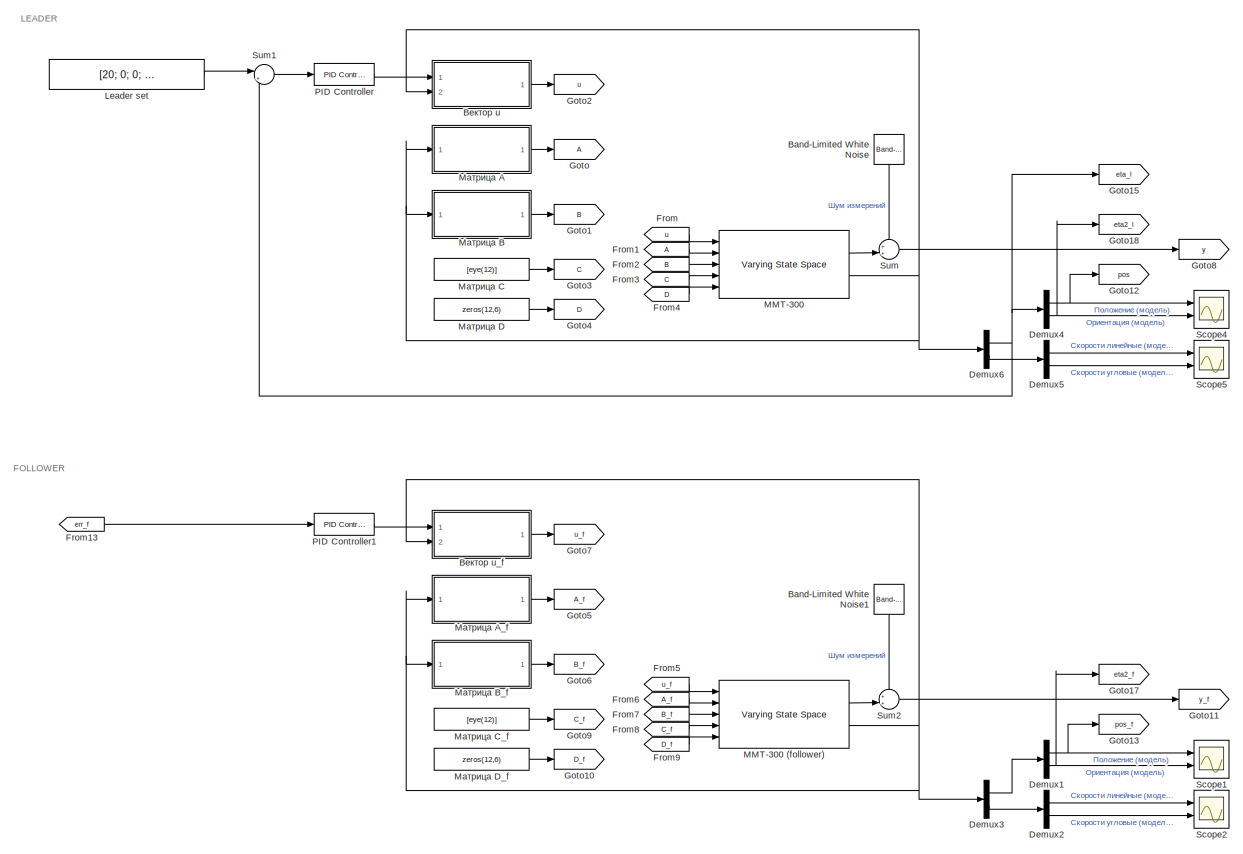
[diagram: root canvas - part 1/2, left side, full height]
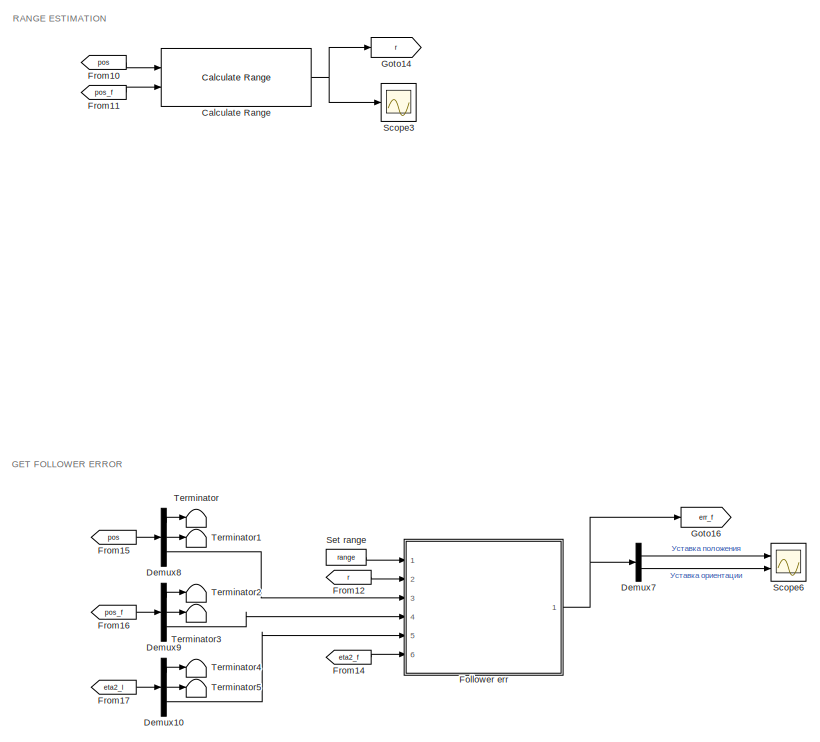
[diagram: root canvas - part 2/2, right side, full height]
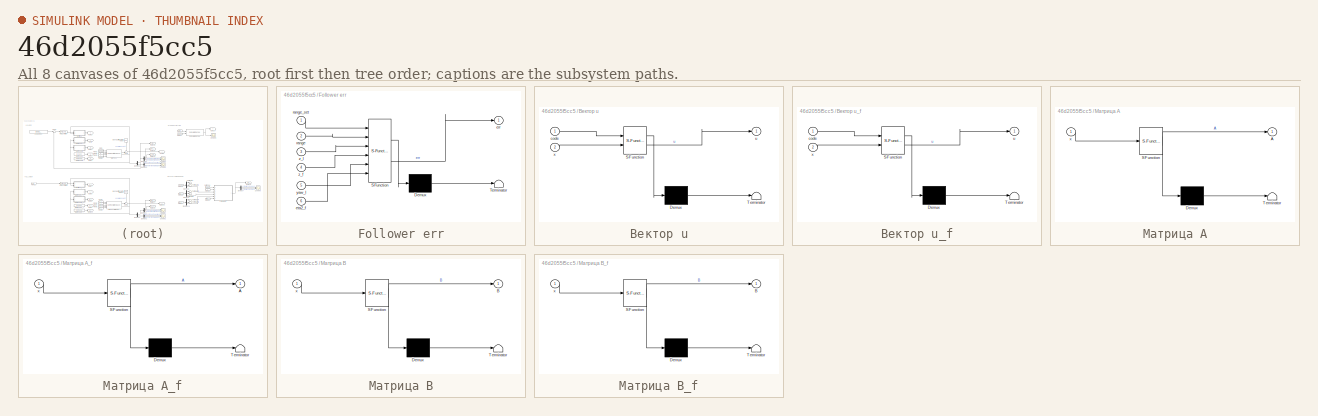
[diagram: thumbnail index - all 8 canvases of the model, root first then tree order]
MODEL slx_46d2055f5cc5
KIND model
CONFIG AbsTol = auto
CONFIG EnableMultiTasking = off
CONFIG FixedStep = auto
CONFIG InitFcn = initFcn
CONFIG MaxStep = auto
CONFIG MinStep = auto
CONFIG RelTol = 1e-3
CONFIG SampleTimeConstraint = Unconstrained
CONFIG SolverName = VariableStepAuto
CONFIG StartTime = 0.0
CONFIG StopFcn = stopFcn
CONFIG StopTime = 20
BLOCK [Reference] Band-Limited White Noise  REF=simulink/Sources/Band-Limited
White Noise
  NameLocation = left
  Ports = [0, 1]
  SourceBlock = simulink/Sources/Band-Limited\nWhite Noise
  SourceProductBaseCode = SL
  SourceType = Band-Limited White Noise.
BLOCK [Reference] Band-Limited White Noise1  REF=simulink/Sources/Band-Limited
White Noise
  NameLocation = left
  Ports = [0, 1]
  SourceBlock = simulink/Sources/Band-Limited\nWhite Noise
  SourceProductBaseCode = SL
  SourceType = Band-Limited White Noise.
BLOCK [Reference] Calculate Range  REF=aerolibguid/Calculate
Range
  Ports = [2, 1]
  SourceBlock = aerolibguid/Calculate\nRange
  SourceProductBaseCode = AE
  SourceType = Calculate Range
BLOCK [Demux] Demux1
  Outputs = 2
  Ports = [1, 2]
BLOCK [Demux] Demux10
  Outputs = 3
  Ports = [1, 3]
BLOCK [Demux] Demux2
  Outputs = 2
  Ports = [1, 2]
BLOCK [Demux] Demux3
  Outputs = 2
  Ports = [1, 2]
BLOCK [Demux] Demux4
  Outputs = 2
  Ports = [1, 2]
BLOCK [Demux] Demux5
  Outputs = 2
  Ports = [1, 2]
BLOCK [Demux] Demux6
  Outputs = 2
  Ports = [1, 2]
BLOCK [Demux] Demux7
  Outputs = 2
  Ports = [1, 2]
BLOCK [Demux] Demux8
  Outputs = 3
  Ports = [1, 3]
BLOCK [Demux] Demux9
  Outputs = 3
  Ports = [1, 3]
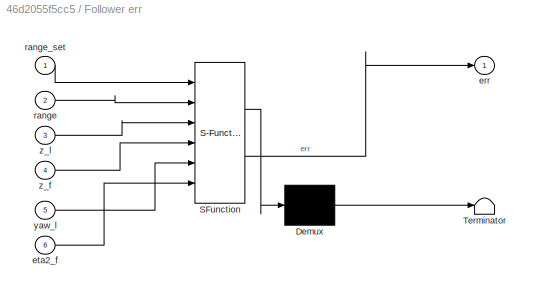
BLOCK [SubSystem] Follower err
  ErrorFcn = Stateflow.Translate.translate
  PermitHierarchicalResolution = ExplicitOnly
  Ports = [6, 1]
  RequestExecContextInheritance = off
  SFBlockType = MATLAB Function
  TreatAsAtomicUnit = on
BLOCK [Demux] Follower err/ Demux 
  Outputs = 1
  Ports = [1, 1]
BLOCK [S-Function] Follower err/ SFunction 
  EnableBusSupport = on
  FunctionName = sf_sfun
  PortCounts = [6 2]
  Ports = [6, 2]
  SFcnIsStateOwnerBlock = off
  SFunctionDeploymentMode = off
  Tag = Stateflow S-Function 7
BLOCK [Terminator] Follower err/ Terminator 
BLOCK [Outport] Follower err/err
BLOCK [Inport] Follower err/eta2_f
  Port = 6
BLOCK [Inport] Follower err/range
  Port = 2
BLOCK [Inport] Follower err/range_set
BLOCK [Inport] Follower err/yaw_l
  Port = 5
BLOCK [Inport] Follower err/z_f
  Port = 4
BLOCK [Inport] Follower err/z_l
  Port = 3
BLOCK [From] From
  GotoTag = u
BLOCK [From] From1
BLOCK [From] From10
  GotoTag = pos
BLOCK [From] From11
  GotoTag = pos_f
BLOCK [From] From12
  GotoTag = r
BLOCK [From] From13
  GotoTag = err_f
BLOCK [From] From14
  GotoTag = eta2_f
BLOCK [From] From15
  GotoTag = pos
BLOCK [From] From16
  GotoTag = pos_f
BLOCK [From] From17
  GotoTag = eta2_l
BLOCK [From] From2
  GotoTag = B
BLOCK [From] From3
  GotoTag = C
BLOCK [From] From4
  GotoTag = D
BLOCK [From] From5
  GotoTag = u_f
BLOCK [From] From6
  GotoTag = A_f
BLOCK [From] From7
  GotoTag = B_f
BLOCK [From] From8
  GotoTag = C_f
BLOCK [From] From9
  GotoTag = D_f
BLOCK [Goto] Goto
BLOCK [Goto] Goto1
  GotoTag = B
BLOCK [Goto] Goto10
  GotoTag = D_f
BLOCK [Goto] Goto11
  GotoTag = y_f
BLOCK [Goto] Goto12
  GotoTag = pos
BLOCK [Goto] Goto13
  GotoTag = pos_f
BLOCK [Goto] Goto14
  GotoTag = r
BLOCK [Goto] Goto15
  GotoTag = eta_l
BLOCK [Goto] Goto16
  GotoTag = err_f
BLOCK [Goto] Goto17
  GotoTag = eta2_f
BLOCK [Goto] Goto18
  GotoTag = eta2_l
BLOCK [Goto] Goto2
  GotoTag = u
BLOCK [Goto] Goto3
  GotoTag = C
BLOCK [Goto] Goto4
  GotoTag = D
BLOCK [Goto] Goto5
  GotoTag = A_f
BLOCK [Goto] Goto6
  GotoTag = B_f
BLOCK [Goto] Goto7
  GotoTag = u_f
BLOCK [Goto] Goto8
  GotoTag = y
BLOCK [Goto] Goto9
  GotoTag = C_f
BLOCK [Constant] Leader set
  Value = [20; 0; 0; 0; 0; 0]
BLOCK [Reference] MMT-300  REF=cstblocks/Linear Parameter Varying/Varying State Space
  Ports = [5, 2]
  SourceBlock = cstblocks/Linear Parameter Varying/Varying State Space
  SourceProductBaseCode = CT
  SourceType = Varying State Space
BLOCK [Reference] MMT-300 (follower)  REF=cstblocks/Linear Parameter Varying/Varying State Space
  Ports = [5, 2]
  SourceBlock = cstblocks/Linear Parameter Varying/Varying State Space
  SourceProductBaseCode = CT
  SourceType = Varying State Space
BLOCK [Reference] PID Controller  REF=slpidlib/PID Controller
  Ports = [1, 1]
  SourceBlock = slpidlib/PID Controller
  SourceProductBaseCode = SL
  SourceType = PID 1dof
BLOCK [Reference] PID Controller1  REF=slpidlib/PID Controller
  Ports = [1, 1]
  SourceBlock = slpidlib/PID Controller
  SourceProductBaseCode = SL
  SourceType = PID 1dof
BLOCK [Scope] Scope1
  Floating = off
  NumInputPorts = 2
  Ports = [2]
  ScopeSpecificationString = Simulink.scopes.TimeScopeBlockCfg('CurrentConfiguration', extmgr.ConfigurationSet(extmgr.Configuration('Core','General UI',true,'FigureColor',[1 1 1]),extmgr.Configuration('Core','Source UI',true),extmgr.Configuration('Sources','WiredSimulink',true,'DataLoggingVariableName','ETA_F1','DataLogging',true,'DataLoggingSaveFormat','StructureWithTime'),extmgr.Configuration('Visuals','Time Domain',true,'P...<+2353ch>
BLOCK [Scope] Scope2
  Floating = off
  NumInputPorts = 2
  Ports = [2]
  ScopeSpecificationString = Simulink.scopes.TimeScopeBlockCfg('CurrentConfiguration', extmgr.ConfigurationSet(extmgr.Configuration('Core','General UI',true,'FigureColor',[1 1 1]),extmgr.Configuration('Core','Source UI',true),extmgr.Configuration('Sources','WiredSimulink',true,'DataLoggingVariableName','ScopeData2'),extmgr.Configuration('Visuals','Time Domain',true,'PlotType','Line','SerializedDisplays',{struct('MinYLimReal',...<+2224ch>
BLOCK [Scope] Scope3
  Floating = off
  NumInputPorts = 1
  Ports = [1]
  ScopeSpecificationString = Simulink.scopes.TimeScopeBlockCfg('CurrentConfiguration', extmgr.ConfigurationSet(extmgr.Configuration('Core','General UI',true,'FigureColor',[1 1 1]),extmgr.Configuration('Core','Source UI',true),extmgr.Configuration('Sources','WiredSimulink',true,'DataLoggingVariableName','RANGE','DataLogging',true,'DataLoggingSaveFormat','StructureWithTime'),extmgr.Configuration('Visuals','Time Domain',true,'Pl...<+1783ch>
BLOCK [Scope] Scope4
  Floating = off
  NumInputPorts = 2
  Ports = [2]
  ScopeSpecificationString = Simulink.scopes.TimeScopeBlockCfg('CurrentConfiguration', extmgr.ConfigurationSet(extmgr.Configuration('Core','General UI',true,'FigureColor',[1 1 1]),extmgr.Configuration('Core','Source UI',true),extmgr.Configuration('Sources','WiredSimulink',true,'DataLoggingVariableName','ETA','DataLogging',true,'DataLoggingSaveFormat','StructureWithTime'),extmgr.Configuration('Visuals','Time Domain',true,'Plot...<+2343ch>
BLOCK [Scope] Scope5
  Floating = off
  NumInputPorts = 2
  Ports = [2]
  ScopeSpecificationString = Simulink.scopes.TimeScopeBlockCfg('CurrentConfiguration', extmgr.ConfigurationSet(extmgr.Configuration('Core','General UI',true,'FigureColor',[1 1 1]),extmgr.Configuration('Core','Source UI',true),extmgr.Configuration('Sources','WiredSimulink',true,'DataLoggingVariableName','ScopeData4'),extmgr.Configuration('Visuals','Time Domain',true,'PlotType','Line','SerializedDisplays',{struct('MinYLimReal',...<+2224ch>
BLOCK [Scope] Scope6
  Floating = off
  NumInputPorts = 2
  Ports = [2]
  ScopeSpecificationString = Simulink.scopes.TimeScopeBlockCfg('CurrentConfiguration', extmgr.ConfigurationSet(extmgr.Configuration('Core','General UI',true,'FigureColor',[1 1 1]),extmgr.Configuration('Core','Source UI',true),extmgr.Configuration('Sources','WiredSimulink',true,'DataLoggingVariableName','SET_F1','DataLogging',true,'DataLoggingSaveFormat','StructureWithTime'),extmgr.Configuration('Visuals','Time Domain',true,'P...<+2345ch>
BLOCK [Constant] Set range
  NameLocation = top
  Value = range
BLOCK [Sum] Sum
  Inputs = ++|
  Ports = [2, 1]
BLOCK [Sum] Sum1
  Inputs = |+-
  Ports = [2, 1]
BLOCK [Sum] Sum2
  Inputs = ++|
  Ports = [2, 1]
BLOCK [Terminator] Terminator
BLOCK [Terminator] Terminator1
BLOCK [Terminator] Terminator2
BLOCK [Terminator] Terminator3
BLOCK [Terminator] Terminator4
BLOCK [Terminator] Terminator5
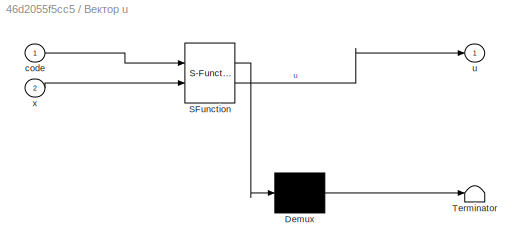
BLOCK [SubSystem] Вектор u
  ErrorFcn = Stateflow.Translate.translate
  PermitHierarchicalResolution = ExplicitOnly
  Ports = [2, 1]
  RequestExecContextInheritance = off
  SFBlockType = MATLAB Function
  TreatAsAtomicUnit = on
BLOCK [Demux] Вектор u/ Demux 
  Outputs = 1
  Ports = [1, 1]
BLOCK [S-Function] Вектор u/ SFunction 
  EnableBusSupport = on
  FunctionName = sf_sfun
  Parameters = B,T,m,p,r_b_b,r_g_b
  PortCounts = [2 2]
  Ports = [2, 2]
  SFcnIsStateOwnerBlock = off
  SFunctionDeploymentMode = off
  Tag = Stateflow S-Function 5
BLOCK [Terminator] Вектор u/ Terminator 
BLOCK [Inport] Вектор u/code
BLOCK [Outport] Вектор u/u
BLOCK [Inport] Вектор u/x
  Port = 2
BLOCK [SubSystem] Вектор u_f
  ErrorFcn = Stateflow.Translate.translate
  PermitHierarchicalResolution = ExplicitOnly
  Ports = [2, 1]
  RequestExecContextInheritance = off
  SFBlockType = MATLAB Function
  TreatAsAtomicUnit = on
BLOCK [Demux] Вектор u_f/ Demux 
  Outputs = 1
  Ports = [1, 1]
BLOCK [S-Function] Вектор u_f/ SFunction 
  EnableBusSupport = on
  FunctionName = sf_sfun
  Parameters = B,T,m,p,r_b_b,r_g_b
  PortCounts = [2 2]
  Ports = [2, 2]
  SFcnIsStateOwnerBlock = off
  SFunctionDeploymentMode = off
  Tag = Stateflow S-Function 1
BLOCK [Terminator] Вектор u_f/ Terminator 
BLOCK [Inport] Вектор u_f/code
BLOCK [Outport] Вектор u_f/u
BLOCK [Inport] Вектор u_f/x
  Port = 2
BLOCK [SubSystem] Матрица A
  ErrorFcn = Stateflow.Translate.translate
  PermitHierarchicalResolution = ExplicitOnly
  Ports = [1, 1]
  RequestExecContextInheritance = off
  SFBlockType = MATLAB Function
  TreatAsAtomicUnit = on
BLOCK [Demux] Матрица A/ Demux 
  Outputs = 1
  Ports = [1, 1]
BLOCK [S-Function] Матрица A/ SFunction 
  EnableBusSupport = on
  FunctionName = sf_sfun
  Parameters = D_LIN,D_QUAD,I0,M,M_A,m,r_b_b,r_g_b
  PortCounts = [1 2]
  Ports = [1, 2]
  SFcnIsStateOwnerBlock = off
  SFunctionDeploymentMode = off
  Tag = Stateflow S-Function 3
BLOCK [Terminator] Матрица A/ Terminator 
BLOCK [Outport] Матрица A/A
BLOCK [Inport] Матрица A/x
BLOCK [SubSystem] Матрица A_f
  ErrorFcn = Stateflow.Translate.translate
  PermitHierarchicalResolution = ExplicitOnly
  Ports = [1, 1]
  RequestExecContextInheritance = off
  SFBlockType = MATLAB Function
  TreatAsAtomicUnit = on
BLOCK [Demux] Матрица A_f/ Demux 
  Outputs = 1
  Ports = [1, 1]
BLOCK [S-Function] Матрица A_f/ SFunction 
  EnableBusSupport = on
  FunctionName = sf_sfun
  Parameters = D_LIN,D_QUAD,I0,M,M_A,m,r_b_b,r_g_b
  PortCounts = [1 2]
  Ports = [1, 2]
  SFcnIsStateOwnerBlock = off
  SFunctionDeploymentMode = off
  Tag = Stateflow S-Function 2
BLOCK [Terminator] Матрица A_f/ Terminator 
BLOCK [Outport] Матрица A_f/A
BLOCK [Inport] Матрица A_f/x
BLOCK [SubSystem] Матрица B
  ErrorFcn = Stateflow.Translate.translate
  PermitHierarchicalResolution = ExplicitOnly
  Ports = [1, 1]
  RequestExecContextInheritance = off
  SFBlockType = MATLAB Function
  TreatAsAtomicUnit = on
BLOCK [Demux] Матрица B/ Demux 
  Outputs = 1
  Ports = [1, 1]
BLOCK [S-Function] Матрица B/ SFunction 
  EnableBusSupport = on
  FunctionName = sf_sfun
  Parameters = M
  PortCounts = [1 2]
  Ports = [1, 2]
  SFcnIsStateOwnerBlock = off
  SFunctionDeploymentMode = off
  Tag = Stateflow S-Function 4
BLOCK [Terminator] Матрица B/ Terminator 
BLOCK [Outport] Матрица B/B
BLOCK [Inport] Матрица B/x
BLOCK [SubSystem] Матрица B_f
  ErrorFcn = Stateflow.Translate.translate
  PermitHierarchicalResolution = ExplicitOnly
  Ports = [1, 1]
  RequestExecContextInheritance = off
  SFBlockType = MATLAB Function
  TreatAsAtomicUnit = on
BLOCK [Demux] Матрица B_f/ Demux 
  Outputs = 1
  Ports = [1, 1]
BLOCK [S-Function] Матрица B_f/ SFunction 
  EnableBusSupport = on
  FunctionName = sf_sfun
  Parameters = M
  PortCounts = [1 2]
  Ports = [1, 2]
  SFcnIsStateOwnerBlock = off
  SFunctionDeploymentMode = off
  Tag = Stateflow S-Function 6
BLOCK [Terminator] Матрица B_f/ Terminator 
BLOCK [Outport] Матрица B_f/B
BLOCK [Inport] Матрица B_f/x
BLOCK [Constant] Матрица C
  Value = [eye(12)]
BLOCK [Constant] Матрица C_f
  Value = [eye(12)]
BLOCK [Constant] Матрица D
  Value = zeros(12,6)
BLOCK [Constant] Матрица D_f
  Value = zeros(12,6)
ANNOTATION (root): FOLLOWER
ANNOTATION (root): GET FOLLOWER ERROR
ANNOTATION (root): LEADER
ANNOTATION (root): RANGE ESTIMATION
LINE Band-Limited White Noise1:1 -> Sum2:1
LINE Band-Limited White Noise:1 -> Sum:1
NET Calculate Range:1 -> Goto14:1, Scope3:1
LINE Demux10:1 -> Terminator4:1
LINE Demux10:2 -> Terminator5:1
LINE Demux10:3 -> Follower err:5
NET Demux1:1 -> Goto13:1, Scope1:1
NET Demux1:2 -> Goto17:1, Scope1:2
LINE Demux2:1 -> Scope2:1
LINE Demux2:2 -> Scope2:2
LINE Demux3:1 -> Demux1:1
LINE Demux3:2 -> Demux2:1
NET Demux4:1 -> Goto12:1, Scope4:1
NET Demux4:2 -> Goto18:1, Scope4:2
LINE Demux5:1 -> Scope5:1
LINE Demux5:2 -> Scope5:2
NET Demux6:1 -> Demux4:1, Goto15:1, Sum1:2
LINE Demux6:2 -> Demux5:1
LINE Demux7:1 -> Scope6:1
LINE Demux7:2 -> Scope6:2
LINE Demux8:1 -> Terminator:1
LINE Demux8:2 -> Terminator1:1
LINE Demux8:3 -> Follower err:3
LINE Demux9:1 -> Terminator2:1
LINE Demux9:2 -> Terminator3:1
LINE Demux9:3 -> Follower err:4
NET Follower err:1 -> Demux7:1, Goto16:1
LINE From10:1 -> Calculate Range:1
LINE From11:1 -> Calculate Range:2
LINE From12:1 -> Follower err:2
LINE From13:1 -> PID Controller1:1
LINE From14:1 -> Follower err:6
LINE From15:1 -> Demux8:1
LINE From16:1 -> Demux9:1
LINE From17:1 -> Demux10:1
LINE From1:1 -> MMT-300:2
LINE From2:1 -> MMT-300:3
LINE From3:1 -> MMT-300:4
LINE From4:1 -> MMT-300:5
LINE From5:1 -> MMT-300 (follower):1
LINE From6:1 -> MMT-300 (follower):2
LINE From7:1 -> MMT-300 (follower):3
LINE From8:1 -> MMT-300 (follower):4
LINE From9:1 -> MMT-300 (follower):5
LINE From:1 -> MMT-300:1
LINE Leader set:1 -> Sum1:1
LINE MMT-300 (follower):1 -> Sum2:2
NET MMT-300 (follower):2 -> Demux3:1, Вектор u_f:2, Матрица A_f:1, Матрица B_f:1
LINE MMT-300:1 -> Sum:2
NET MMT-300:2 -> Demux6:1, Вектор u:2, Матрица A:1, Матрица B:1
LINE PID Controller1:1 -> Вектор u_f:1
LINE PID Controller:1 -> Вектор u:1
LINE Set range:1 -> Follower err:1
LINE Sum1:1 -> PID Controller:1
LINE Sum2:1 -> Goto11:1
LINE Sum:1 -> Goto8:1
LINE Вектор u:1 -> Goto2:1
LINE Вектор u_f:1 -> Goto7:1
LINE Матрица A:1 -> Goto:1
LINE Матрица A_f:1 -> Goto5:1
LINE Матрица B:1 -> Goto1:1
LINE Матрица B_f:1 -> Goto6:1
LINE Матрица C:1 -> Goto3:1
LINE Матрица C_f:1 -> Goto9:1
LINE Матрица D:1 -> Goto4:1
LINE Матрица D_f:1 -> Goto10:1
note: NET lines group one-source signal fan-out (src -> all destinations, sorted); 1:1 wires keep LINE
CHART Вектор u_f states=1 transitions=1
  STATE_LABEL 'eML_blk_kernel()'
  STATE_LABEL 'SCRIPT:\nfunction u = Vector_u(code, x, T, p, B, m, r_g_b, r_b_b)\nn = 6;\neta = x(1:n); \n\n%% РАСЧЕТ g(n)\nx_g = r_g_b(1); y_g = r_g_b(2); z_g = r_g_b(3);\nx_b = r_b_b(1); y_b = r_b_b(2); z_b = r_b_b(3);\ng = @(eta)[ (m*9.81-B)*sin(eta(5)); \n           -(m*9.81-B)*cos(eta(5))*sin(eta(4)); \n           -(m*9.81-B)*cos(eta(5))*cos(eta(4));\n           -(y_g*m*9.81-y_b*B)*cos(eta(5))*cos(eta(4)) + ...\n      ...<+1442ch>'
CHART Матрица A_f states=1 transitions=1
  STATE_LABEL 'eML_blk_kernel()'
  STATE_LABEL 'SCRIPT:\nfunction A = Matrix_A(x, M, I0, r_g_b, m, r_b_b, M_A, D_LIN, D_QUAD)\nn = 6;\neta = x(1:n); \nv = x(7:end);\n\n%% ВСПОМОГАТЕЛЬНЫЕ ФУНКЦИИ\n% преобразование в кососимметричную матрицу\nS = @(x)([ 0 -x(3) x(2); x(3) 0 -x(1); -x(2) x(1) 0 ]); \n\n%% РАСЧЕТ ЯКОБИАНА\nJ_k_o = @(eta)[ 1  0           -sin(eta(5)); ...\n                0  cos(eta(4))  cos(eta(5))*sin(eta(4)); ...\n                0 -sin(eta(4...<+1415ch>'
CHART Матрица A states=1 transitions=1
  STATE_LABEL 'eML_blk_kernel()'
  STATE_LABEL 'SCRIPT:\nfunction A = Matrix_A(x, M, I0, r_g_b, m, r_b_b, M_A, D_LIN, D_QUAD)\nn = 6;\neta = x(1:n); \nv = x(7:end);\n\n%% ВСПОМОГАТЕЛЬНЫЕ ФУНКЦИИ\n% преобразование в кососимметричную матрицу\nS = @(x)([ 0 -x(3) x(2); x(3) 0 -x(1); -x(2) x(1) 0 ]); \n\n%% РАСЧЕТ ЯКОБИАНА\nJ_k_o = @(eta)[ 1  0           -sin(eta(5)); ...\n                0  cos(eta(4))  cos(eta(5))*sin(eta(4)); ...\n                0 -sin(eta(4...<+1415ch>'
CHART Матрица B states=1 transitions=1
  STATE_LABEL 'eML_blk_kernel()'
  STATE_LABEL 'SCRIPT:\nfunction B = Matrix_B(x, M)\nn = 6;\nB = [zeros(n); M^-1];'
CHART Вектор u states=1 transitions=1
  STATE_LABEL 'eML_blk_kernel()'
  STATE_LABEL 'SCRIPT:\nfunction u = Vector_u(code, x, T, p, B, m, r_g_b, r_b_b)\nn = 6;\neta = x(1:n); \n\n%% РАСЧЕТ g(n)\nx_g = r_g_b(1); y_g = r_g_b(2); z_g = r_g_b(3);\nx_b = r_b_b(1); y_b = r_b_b(2); z_b = r_b_b(3);\ng = @(eta)[ (m*9.81-B)*sin(eta(5)); \n           -(m*9.81-B)*cos(eta(5))*sin(eta(4)); \n           -(m*9.81-B)*cos(eta(5))*cos(eta(4));\n           -(y_g*m*9.81-y_b*B)*cos(eta(5))*cos(eta(4)) + ...\n      ...<+1442ch>'
CHART Матрица B_f states=1 transitions=1
  STATE_LABEL 'eML_blk_kernel()'
  STATE_LABEL 'SCRIPT:\nfunction B = Matrix_B(x, M)\nn = 6;\nB = [zeros(n); M^-1];'
CHART Follower err states=1 transitions=1
  STATE_LABEL 'eML_blk_kernel()'
  STATE_LABEL 'SCRIPT:\nfunction err = Follower_err(range_set, range, z_l, z_f, yaw_l, eta2_f)\nerr = zeros(6,1);\nerr(1) = -(range_set - range);\nerr(2) = 0;\nerr(3) = z_l - z_f;\nerr(4) = 0 - eta2_f(1);\nerr(5) = 0 - eta2_f(2);\nerr(6) = (yaw_l - eta2_f(3));'
CHART  states=0 transitions=0
CHART  states=0 transitions=0
CHART  states=0 transitions=0
CHART  states=0 transitions=0
CHART  states=0 transitions=0
CHART  states=0 transitions=0
CHART  states=0 transitions=0
